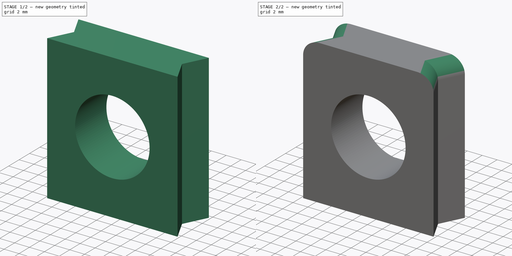
[diagram: build sequence overview — one tinted view per stage of 2, left to right]
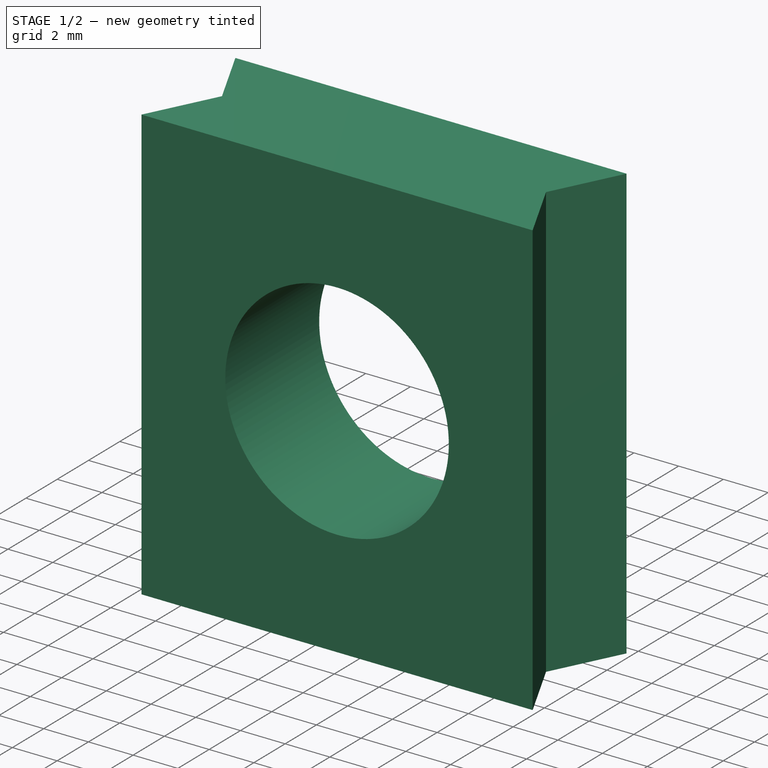
[diagram: stage 1 of 2 — iso view after this stage's code; geometry added in this stage tinted green]
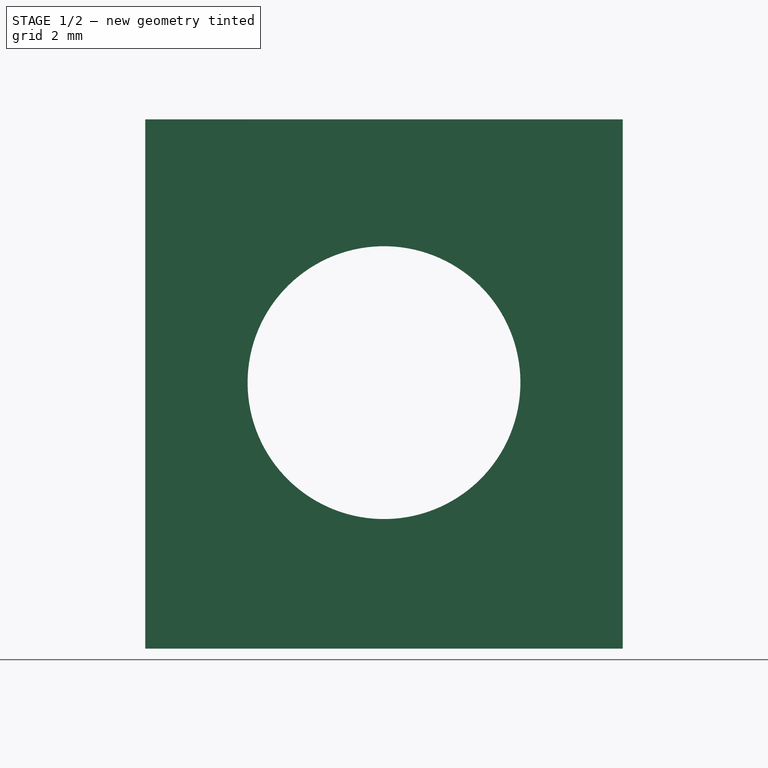
[diagram: stage 1 of 2 — front view after this stage's code; geometry added in this stage tinted green]
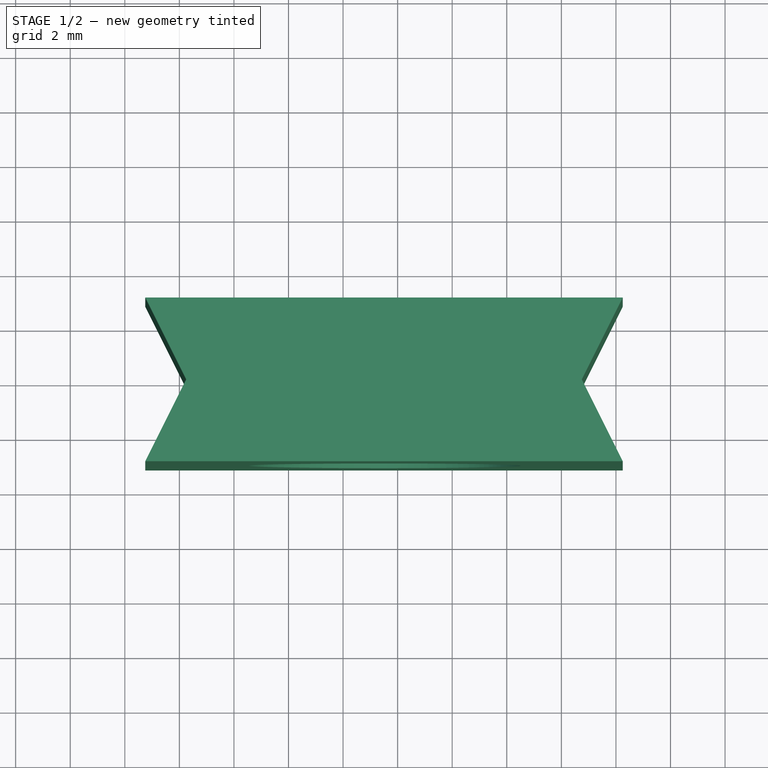
[diagram: stage 1 of 2 — top view after this stage's code; geometry added in this stage tinted green]
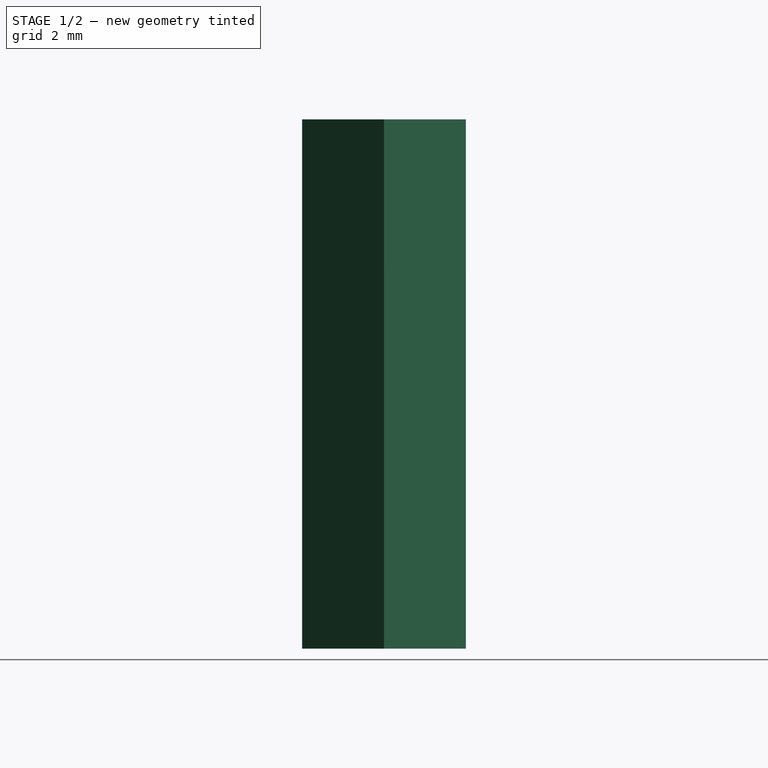
[diagram: stage 1 of 2 — right view after this stage's code; geometry added in this stage tinted green]
FCSTD DOCUMENT  (FreeCAD 0.18R4 (GitTag))
Label: Connector_high_tolerance
License: All rights reserved
LicenseURL: http://en.wikipedia.org/wiki/All_rights_reserved
objects: Sketcher::SketchObject×2, PartDesign::ShapeBinder×1, PartDesign::Pad×1, PartDesign::Pocket×1, PartDesign::Fillet×1, PartDesign::Body×1
note: 9 computed .brp shape members not serialized (recipe doc carries the construction recipe); baked Part::Feature solids carry a one-line shape summary decoded from their .brp

FEATURE [PartDesign::ShapeBinder] ReferenceMirrored003
  TraceSupport = false
FEATURE [Sketcher::SketchObject] Sketch019
  MapMode = 5
  Placement = pos=(0,0,20) rot=(0,0,1;0rad)
  Support = -> [ReferenceMirrored003]
  sketch-geometry (6):
    g0: LineSegment StartX=-21.25 StartY=-17.11 StartZ=0 EndX=-3.75 EndY=-17.11 EndZ=0
    g1: LineSegment StartX=-3.75 StartY=-17.11 StartZ=0 EndX=-5.25 EndY=-20.11 EndZ=0
    g2: LineSegment StartX=-19.75 StartY=-20.11 StartZ=0 EndX=-21.25 EndY=-17.11 EndZ=0
    g3: LineSegment StartX=-19.75 StartY=-20.11 StartZ=0 EndX=-21.25 EndY=-23.11 EndZ=0
    g4: LineSegment StartX=-21.25 StartY=-23.11 StartZ=0 EndX=-3.75 EndY=-23.11 EndZ=0
    g5: LineSegment StartX=-3.75 StartY=-23.11 StartZ=0 EndX=-5.25 EndY=-20.11 EndZ=0
  constraints (19):
    c: Coincident(g0,g1)
    c: Coincident(g2,g0)
    c: Horizontal(g0)
    c: DistanceX(g0,g0) = 17.5
    c: DistanceX(g2,g1) = 14.5
    c: Equal(g2,g1)
    c: DistanceY(g2,g0) = 3
    c: Horizontal(g1,g2)
    c: Coincident(g3,g4)
    c: Coincident(g4,g5)
    c: Coincident(g2,g3)
    c: Coincident(g5,g1)
    c: Equal(g1,g3)
    c: Equal(g2,g5)
    c: Equal(g0,g4)
    c: Equal(g3,g5)
    c: Horizontal(g4)
    c: DistanceX(g0,g-1) = 3.75
    c: DistanceY(g0,g-1) = 17.11
FEATURE [PartDesign::Pad] Pad003
  Length = 19.4
  Length2 = 100
  Profile = -> Sketch019
  Reversed = true
  Type = 0
FEATURE [Sketcher::SketchObject] Sketch
  ExternalGeometry = -> [Pad003]
  MapMode = 5
  Placement = pos=(0,-23.11,0) rot=(1,0,0;1.5708rad)
  Support = -> [Pad003]
  sketch-geometry (1):
    g0: Circle CenterX=-12.5 CenterY=10.35 CenterZ=0 NormalX=0 NormalY=0 NormalZ=1 AngleXU=0 Radius=5
  constraints (4):
    c: Radius(g0) = 5
    c: DistanceY(g-3,g0) = 9.75
    c: DistanceX(g0,g-3) = 8.75
    c: DistanceX(g-3,g-3) = 17.5
FEATURE [PartDesign::Pocket] Pocket
  BaseFeature = -> Pad003
  Length = 5
  Length2 = 100
  Profile = -> Sketch
  Type = 1
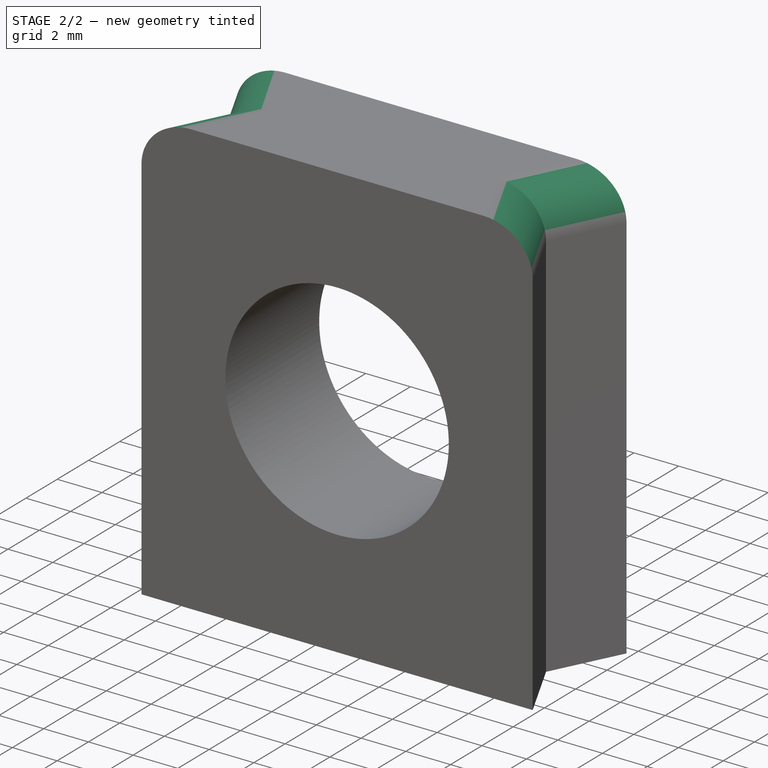
[diagram: stage 2 of 2 — iso view after this stage's code; geometry added in this stage tinted green]
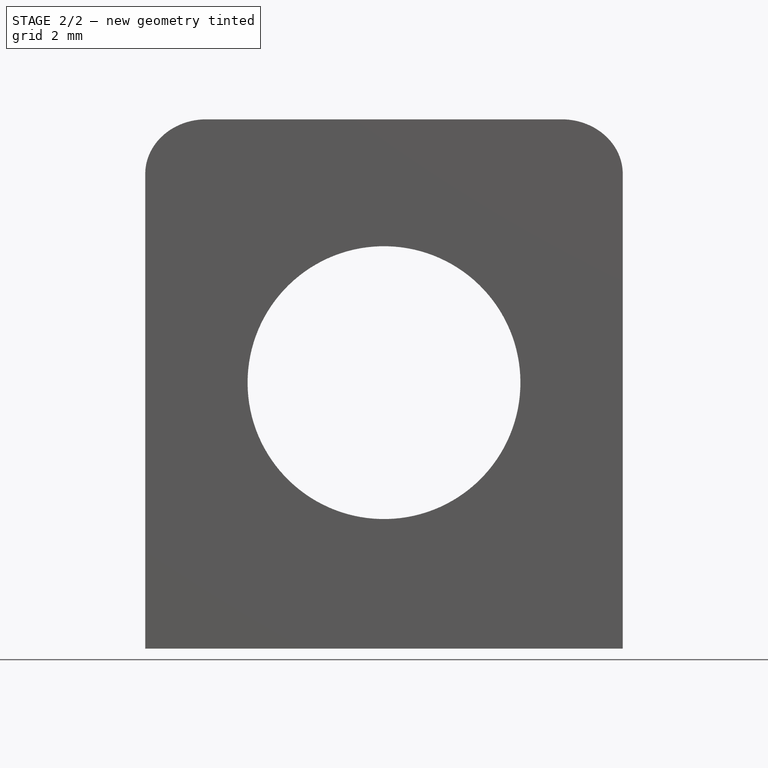
[diagram: stage 2 of 2 — front view after this stage's code; geometry added in this stage tinted green]
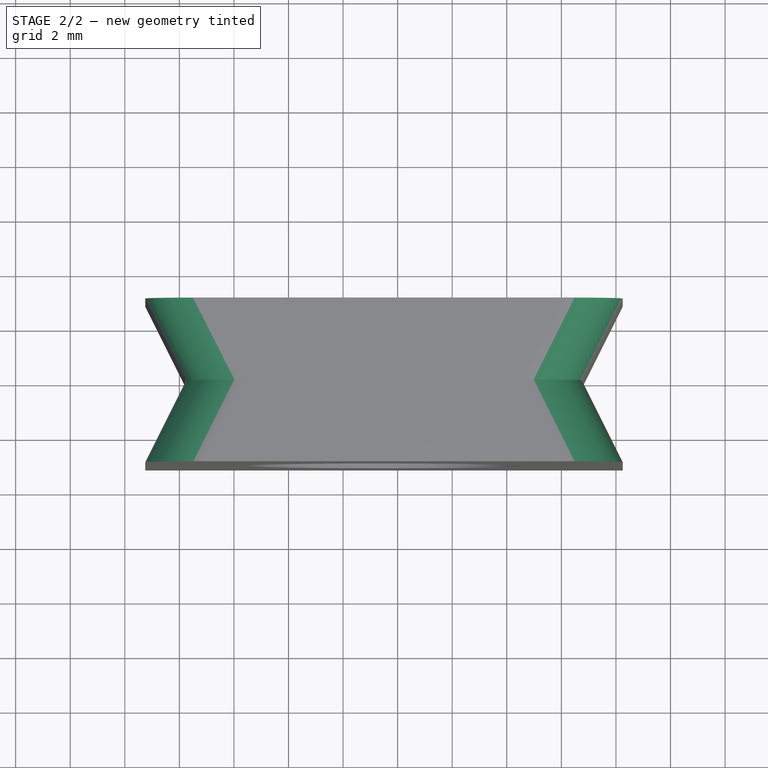
[diagram: stage 2 of 2 — top view after this stage's code; geometry added in this stage tinted green]
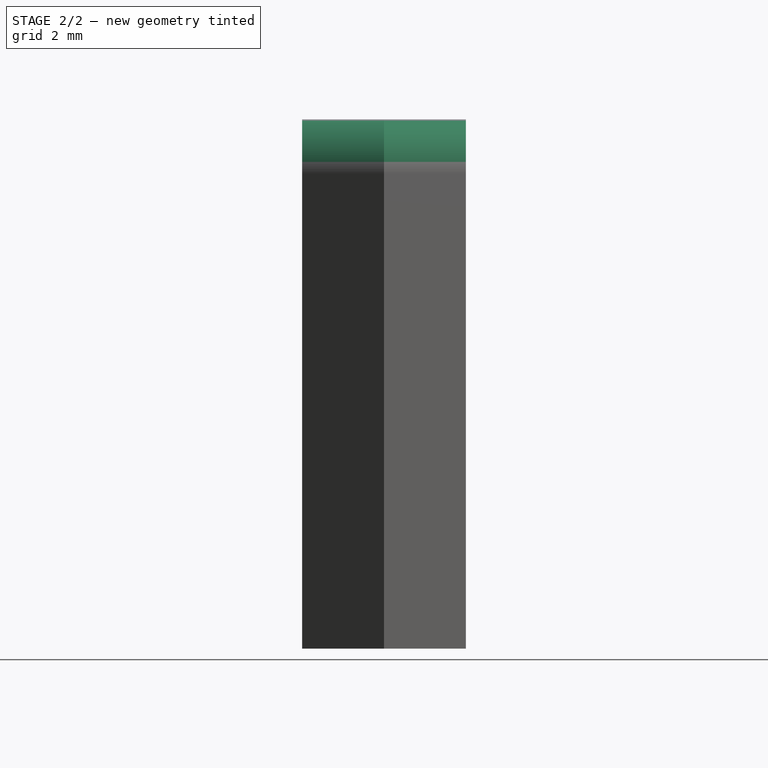
[diagram: stage 2 of 2 — right view after this stage's code; geometry added in this stage tinted green]
FEATURE [PartDesign::Fillet] Fillet
  Base = -> Pocket [Edge12,Edge7,Edge9,Edge10]
  BaseFeature = -> Pocket
  Radius = 2
FEATURE [PartDesign::Body] Body001  label="Connector_Block"
  Group = -> [ReferenceMirrored003,Sketch019,Pad003,Sketch,Pocket,Fillet]
  Origin = -> Origin001
  Tip = -> Fillet
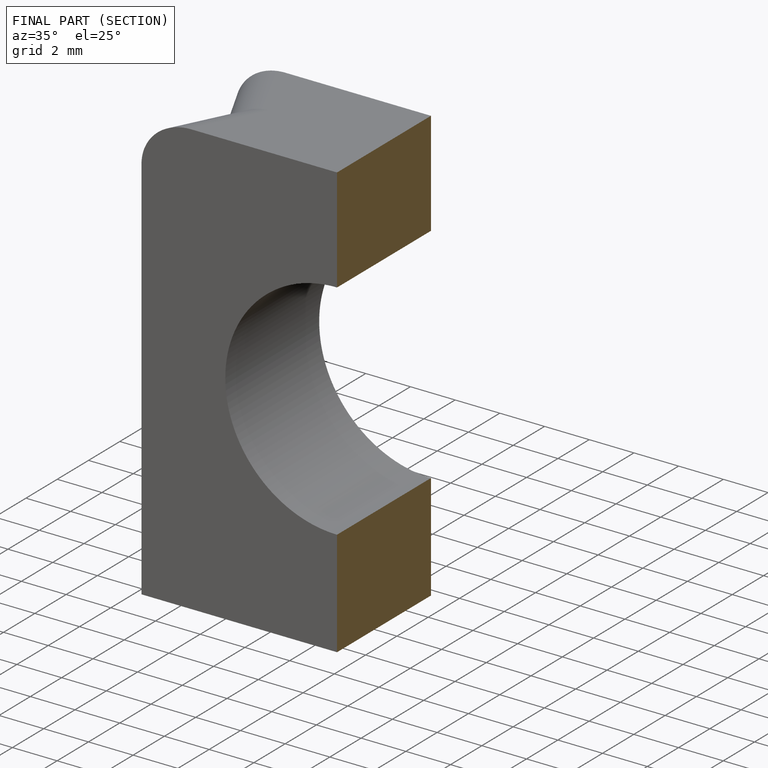
[diagram: finished part — half-section view (interior)]
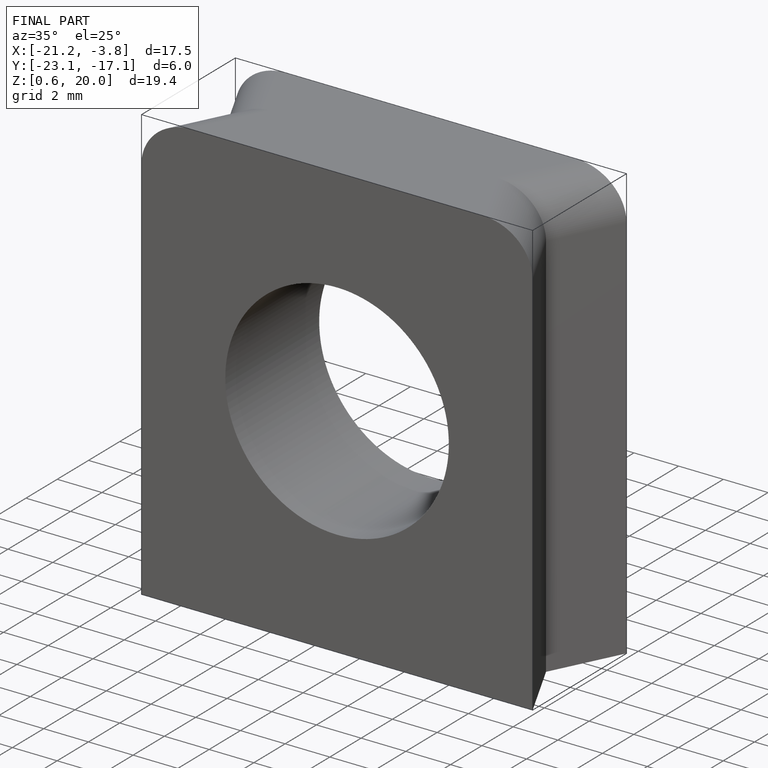
[diagram: finished part — iso view with bounding-box wireframe]
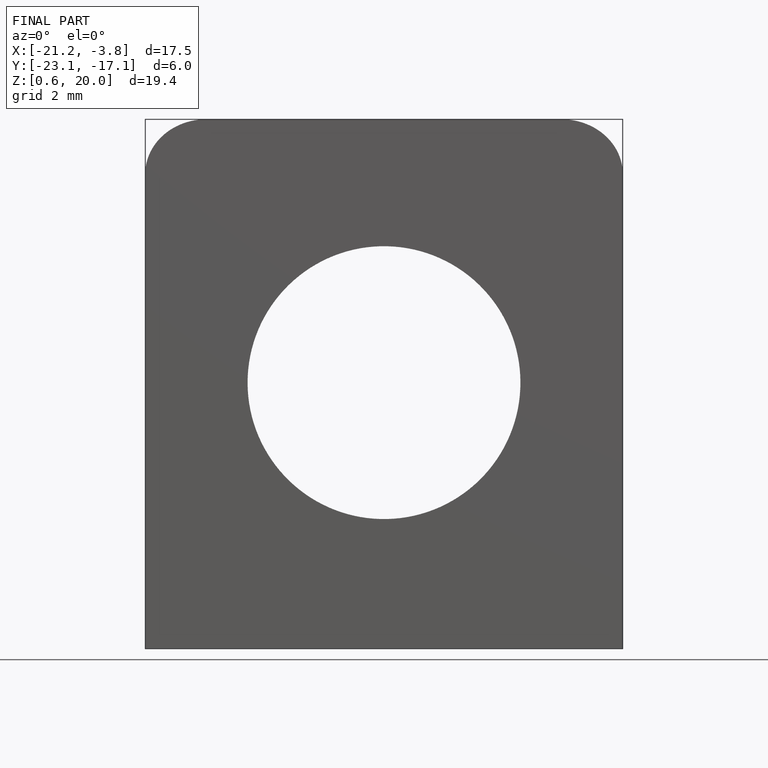
[diagram: finished part — front view with bounding-box wireframe]
